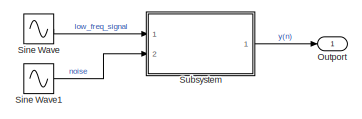
[diagram: root canvas - part 1/2, middle left region]
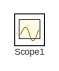
[diagram: root canvas - part 2/2, bottom right region]
MODEL slx_739dc7375eab
KIND model
CONFIG AbsTol = auto
CONFIG EnableMultiTasking = off
CONFIG FixedStep = 0.01
CONFIG MaxStep = auto
CONFIG MinStep = auto
CONFIG RelTol = 1e-3
CONFIG SampleTimeConstraint = Unconstrained
CONFIG SolverName = FixedStepAuto
CONFIG StartTime = 0.0
CONFIG StopTime = 10
BLOCK [Outport] Outport
BLOCK [Scope] Scope1
  Floating = off
  IOType = viewer
  NumInputPorts = 1
  Ports = []
  ScopeSpecificationString = Simulink.scopes.TimeScopeBlockCfg('CurrentConfiguration', extmgr.ConfigurationSet(extmgr.Configuration('Core','General UI',true),extmgr.Configuration('Core','Source UI',true),extmgr.Configuration('Sources','WiredSimulink',true,'DataLoggingVariableName','ScopeData1'),extmgr.Configuration('Visuals','Time Domain',true,'SerializedDisplays',{struct('MinYLimReal','-18.74982','MaxYLimReal','18.74982','YL...<+3429ch>
BLOCK [Sin] Sine Wave
  Amplitude = 15
  Frequency = 100
  Ports = [0, 1]
  SampleTime = 0
BLOCK [Sin] Sine Wave1
  Amplitude = 3
  Frequency = 62356
  Ports = [0, 1]
  SampleTime = 0
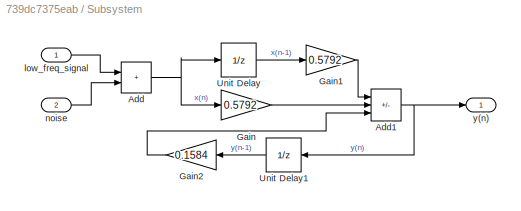
BLOCK [SubSystem] Subsystem
  Ports = [2, 1]
  RequestExecContextInheritance = off
BLOCK [Sum] Subsystem/Add
  IconShape = rectangular
  Ports = [2, 1]
BLOCK [Sum] Subsystem/Add1
  IconShape = rectangular
  Inputs = -++
  Ports = [3, 1]
BLOCK [Gain] Subsystem/Gain
  Gain = 0.5792
BLOCK [Gain] Subsystem/Gain1
  Gain = 0.5792
BLOCK [Gain] Subsystem/Gain2
  Gain = 0.1584
BLOCK [UnitDelay] Subsystem/Unit Delay
  HasFrameUpgradeWarning = on
  SampleTime = -1
BLOCK [UnitDelay] Subsystem/Unit Delay1
  HasFrameUpgradeWarning = on
  SampleTime = -1
BLOCK [Inport] Subsystem/low_freq_signal
BLOCK [Inport] Subsystem/noise
  Port = 2
BLOCK [Outport] Subsystem/y(n)
LINE Sine Wave1:1 -> Subsystem:2
LINE Sine Wave:1 -> Subsystem:1
NET Subsystem/Add1:1 -> Subsystem/Unit Delay1:1, Subsystem/y(n):1
NET Subsystem/Add:1 -> Subsystem/Gain:1, Subsystem/Unit Delay:1
LINE Subsystem/Gain1:1 -> Subsystem/Add1:1
LINE Subsystem/Gain2:1 -> Subsystem/Add1:3
LINE Subsystem/Gain:1 -> Subsystem/Add1:2
LINE Subsystem/Unit Delay1:1 -> Subsystem/Gain2:1
LINE Subsystem/Unit Delay:1 -> Subsystem/Gain1:1
LINE Subsystem/low_freq_signal:1 -> Subsystem/Add:1
LINE Subsystem/noise:1 -> Subsystem/Add:2
LINE Subsystem:1 -> Outport:1
note: NET lines group one-source signal fan-out (src -> all destinations, sorted); 1:1 wires keep LINE
